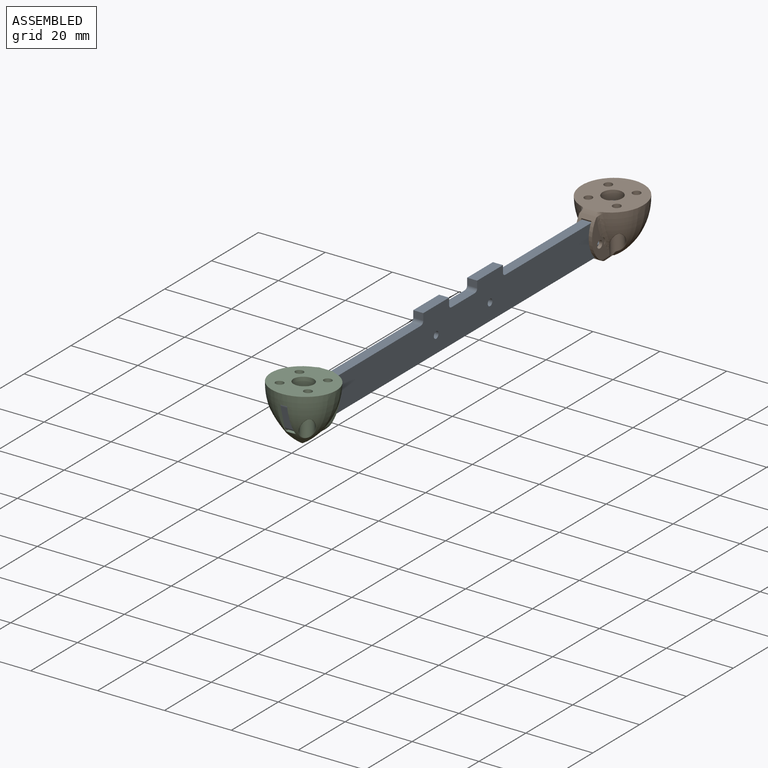
[diagram: assembled view]
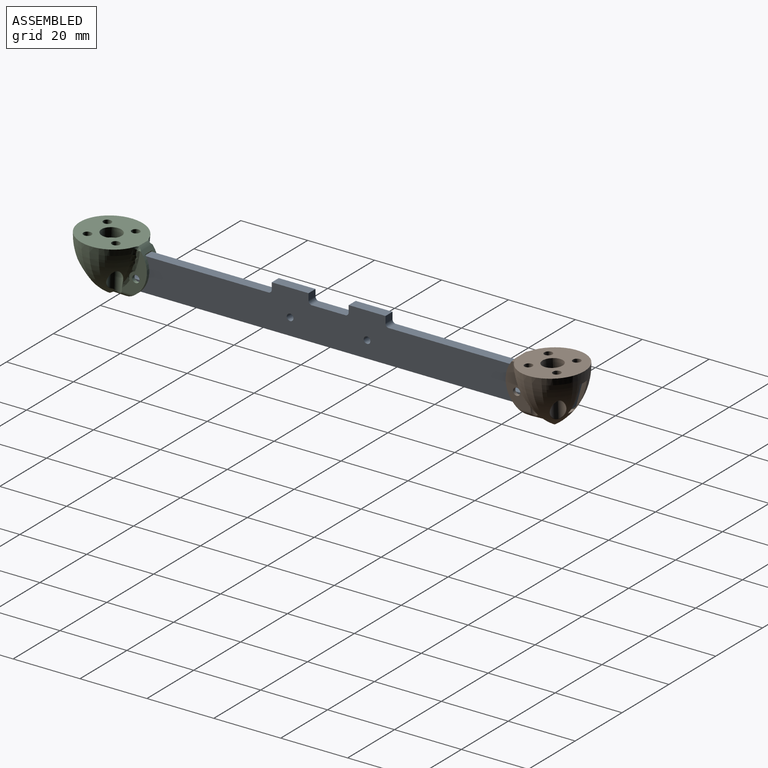
[diagram: assembled view, second angle]
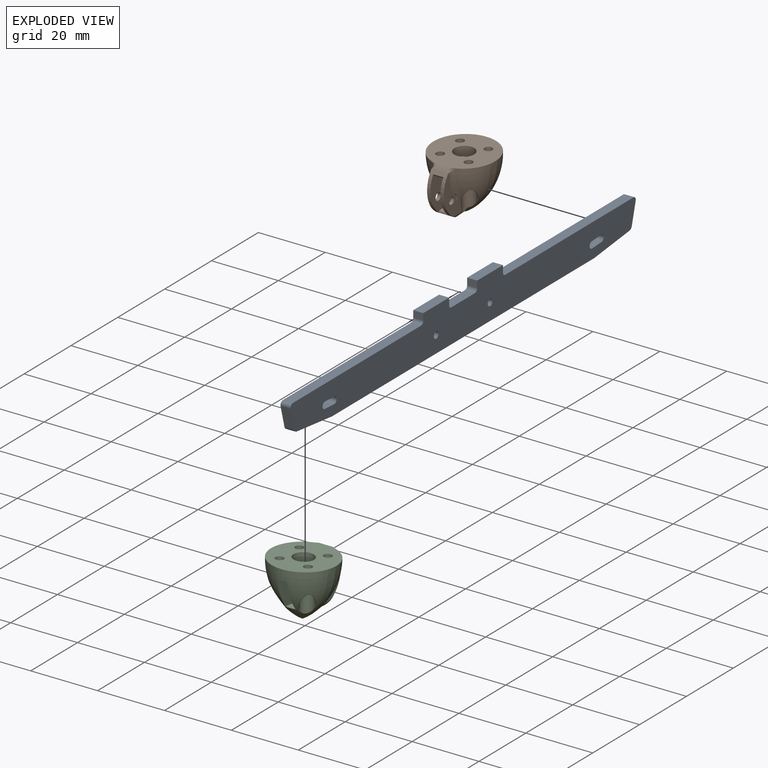
[diagram: exploded view]
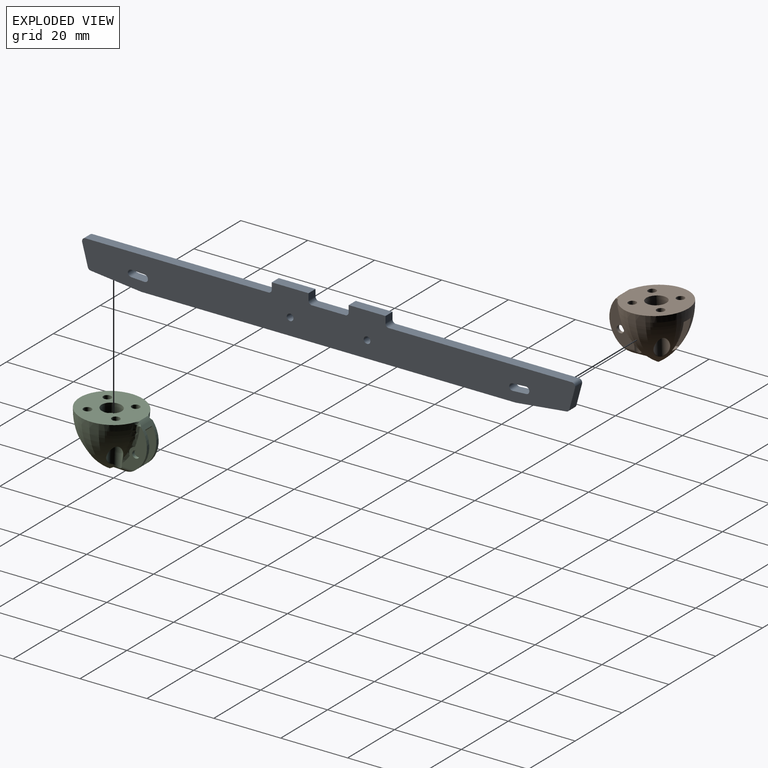
[diagram: exploded view, second angle]
ASSEMBLY  parts=3 mates=6
PART A: 34 faces, bbox 147.4x3x13 mm
  f0: plane 54.7x3mm, normal (0,0,1), area 164.1mm2, adj f4,f5,f21,f29
  f1: plane 54.7x3mm, normal (0,0,1), area 164.1mm2, adj f4,f5,f13,f30
  f2: plane 10x3mm, normal (0,0,1), area 30mm2, adj f4,f5,f28,f31
  f3: plane 6.33x3mm, normal (-0.97,0,-0.26), area 19.7mm2, adj f4,f5,f12,f13
  f4: plane 147.39x13mm, normal (0,-1,0), area 1463.7mm2, adj f0,f1,f2,f3,f6,f7,f8,f9
  f5: plane 147.39x13mm, normal (0,1,0), area 1463.7mm2, adj f0,f1,f2,f3,f6,f7,f8,f9
  f6: plane 15.11x3mm, normal (-0.11,0,-0.99), area 45.6mm2, adj f4,f5,f7,f12
  f7: plane 112x3mm, normal (0,0,-1), area 336mm2, adj f4,f5,f6,f15
  f8: plane 3.99x3mm, normal (0.06,0,1), area 12mm2, adj f4,f5,f9,f11
  f9: cylinder r=1mm len=3mm, axis (0,-1,0), area 9.4mm2, adj f4,f5,f8,f10
  f10: plane 3.99x3mm, normal (-0.06,0,-1), area 12mm2, adj f4,f5,f9,f11
  f11: cylinder r=1mm len=3mm, axis (0,-1,0), area 9.4mm2, adj f4,f5,f8,f10
  f12: cylinder r=1mm len=3mm, axis (0,-1,0), area 3.6mm2, adj f3,f4,f5,f6
  f13: cylinder r=1mm len=3mm, axis (0,1,0), area 5.5mm2, adj f1,f3,f4,f5
  f14: plane 6.33x3mm, normal (0.97,0,-0.26), area 19.7mm2, adj f4,f5,f20,f21
  f15: plane 15.11x3mm, normal (0.11,0,-0.99), area 45.6mm2, adj f4,f5,f7,f20
  f16: plane 3.99x3mm, normal (-0.06,0,1), area 12mm2, adj f4,f5,f17,f19
  f17: cylinder r=1mm len=3mm, axis (0,-1,0), area 9.4mm2, adj f4,f5,f16,f18
  f18: plane 3.99x3mm, normal (0.06,0,-1), area 12mm2, adj f4,f5,f17,f19
  f19: cylinder r=1mm len=3mm, axis (0,-1,0), area 9.4mm2, adj f4,f5,f16,f18
  f20: cylinder r=1mm len=3mm, axis (0,-1,0), area 3.6mm2, adj f4,f5,f14,f15
  f21: cylinder r=1mm len=3mm, axis (0,1,0), area 5.5mm2, adj f0,f4,f5,f14
  f22: plane 3x2mm, normal (-1,0,0), area 6mm2, adj f4,f5,f24,f30
  f23: plane 3x2mm, normal (1,0,0), area 6mm2, adj f4,f5,f24,f31
  f24: plane 11x3mm, normal (0,0,1), area 33mm2, adj f4,f5,f22,f23
  f25: plane 3x2mm, normal (1,0,0), area 6mm2, adj f4,f5,f27,f29
  f26: plane 3x2mm, normal (-1,0,0), area 6mm2, adj f4,f5,f27,f28
  f27: plane 11x3mm, normal (0,0,1), area 33mm2, adj f4,f5,f25,f26
  f28: cylinder r=1mm len=3mm, axis (0,-1,0), area 4.7mm2, adj f2,f4,f5,f26
  f29: cylinder r=1mm len=3mm, axis (0,1,0), area 4.7mm2, adj f0,f4,f5,f25
  f30: cylinder r=1mm len=3mm, axis (0,-1,0), area 4.7mm2, adj f1,f4,f5,f22
  f31: cylinder r=1mm len=3mm, axis (0,1,0), area 4.7mm2, adj f2,f4,f5,f23
  f32: cylinder r=1mm len=3mm, axis (0,-1,0), area 18.8mm2, adj f4,f5
  f33: cylinder r=1mm len=3mm, axis (0,-1,0), area 18.8mm2, adj f4,f5
PART B: 63 faces, bbox 19x22.1x17.8 mm
  f0: revolved ~19x19mm, area 520.2mm2, adj f1,f38,f39,f40,f41,f45,f49,f50
  f1: plane 21.66x11.28mm, normal (1,0,0), area 183.4mm2, adj f0,f2,f31,f32,f33,f34,f35,f36
  f2: cylinder r=1.1mm len=2.2mm, axis (1,0,0), area 6.9mm2, adj f1,f3
  f3: plane 12.41x7.27mm, normal (-1,0,0), area 38.7mm2, adj f2,f4,f5,f6,f13,f33,f60,f61
  f4: plane 0.1x0.08mm, normal (-0.71,0,0.71), area 0mm2, adj f3,f33,f61
  f5: cylinder r=2mm len=2.85mm, axis (1,0,0), area 0mm2, adj f3,f60
  f6: cylinder r=0.2mm len=0.73mm, axis (0,0,1), area 0.1mm2, adj f3,f7,f11,f12
  f7: cylinder r=2mm len=10.97mm, axis (0,0,1), area 89.1mm2, adj f6,f8,f10,f11,f12,f59
  f8: plane 4x4mm, normal (0,0,-1), area 8mm2, adj f7,f9
  f9: cylinder r=1.2mm len=3.2mm, axis (0,0,1), area 24.1mm2, adj f8,f62
  f10: bspline ~1.18x0.97mm, area 0.2mm2, adj f7,f11,f58,f59
  f11: bspline ~1.99x0.94mm, area 0.3mm2, adj f6,f7,f10,f13
  f12: bspline ~4.25x1.38mm, area 1mm2, adj f6,f7,f59,f60
  f13: cylinder r=1.5mm len=6.69mm, axis (0,-1,0), area 4.4mm2, adj f3,f11,f14,f33,f58
  f14: plane 4.81x0.13mm, normal (-0.71,0,-0.71), area 0.8mm2, adj f13,f15,f33,f57
  f15: cylinder r=1.5mm len=4.46mm, axis (0,1,0), area 3.5mm2, adj f14,f16,f33,f56
  f16: plane 1.76x1.54mm, normal (0,0,-1), area 2.5mm2, adj f15,f17,f33,f55
  f17: cylinder r=1.5mm len=4.46mm, axis (0,-1,0), area 3.5mm2, adj f16,f18,f33,f54
  f18: plane 4.81x0.13mm, normal (0.71,0,-0.71), area 0.8mm2, adj f17,f19,f33,f53
  f19: cylinder r=1.5mm len=6.69mm, axis (0,1,0), area 4.4mm2, adj f18,f20,f27,f33,f52
  f20: bspline ~1.99x0.93mm, area 0.3mm2, adj f19,f21,f25,f26
  f21: cylinder r=2mm len=10.97mm, axis (0,0,1), area 89.3mm2, adj f20,f22,f23,f25,f26,f51
  f22: bspline ~4.24x1.38mm, area 1mm2, adj f21,f25,f50,f51
  f23: plane 4x4mm, normal (0,0,-1), area 8mm2, adj f21,f24
  f24: cylinder r=1.2mm len=3.2mm, axis (0,0,1), area 24.1mm2, adj f23,f62
  f25: cylinder r=0.2mm len=0.73mm, axis (0,0,1), area 0.1mm2, adj f20,f21,f22,f27
  f26: bspline ~1.17x0.95mm, area 0.2mm2, adj f20,f21,f51,f52
  f27: plane 12.41x7.27mm, normal (1,0,0), area 38.7mm2, adj f19,f25,f28,f29,f30,f33,f49,f50
  f28: cylinder r=2mm len=2.85mm, axis (-1,0,0), area 0mm2, adj f27,f50
  f29: plane 0.1x0.08mm, normal (0.71,0,0.71), area 0mm2, adj f27,f33,f49
  f30: cylinder r=1.1mm len=2.2mm, axis (1,0,0), area 6.9mm2, adj f27,f39
  f31: plane 8.39x3.03mm, normal (0,0.03,-1), area 24.3mm2, adj f1,f32,f36,f39
  f32: plane 3x0.47mm, normal (0,0.88,-0.47), area 1.6mm2, adj f1,f31,f33,f39
  f33: cylinder r=8.5mm len=15.01mm, axis (1,0,0), area 58.2mm2, adj f1,f3,f4,f13,f14,f15,f16,f17
  f34: plane 3x0.38mm, normal (0,0.96,0.29), area 1.2mm2, adj f1,f33,f38,f39
  f35: plane 5.2x1.5mm, normal (0,0,1), area 5.5mm2, adj f1,f36
  f36: cylinder r=3mm len=6mm, axis (0,0,1), area 52.8mm2, adj f1,f31,f35,f37,f39,f40,f62
  f37: plane 5.2x1.5mm, normal (0,0,1), area 5.5mm2, adj f36,f39
  f38: plane 14.61x3.05mm, normal (0,0.08,1), area 43.6mm2, adj f0,f1,f34,f39
  f39: plane 21.66x11.28mm, normal (-1,0,0), area 183.4mm2, adj f0,f30,f31,f32,f33,f34,f36,f37
  f40: plane 6.68x3.04mm, normal (0,0.03,-1), area 19mm2, adj f0,f1,f36,f39
  f41: bspline ~7.09x4.49mm, area 7.3mm2, adj f0,f42
  f42: cylinder r=2mm len=10.09mm, axis (0,0,1), area 82.8mm2, adj f41,f43
  f43: plane 4x4mm, normal (0,0,-1), area 8mm2, adj f42,f44
  f44: cylinder r=1.2mm len=3.2mm, axis (0,0,1), area 24.1mm2, adj f43,f62
  f45: bspline ~7.09x4.49mm, area 7.3mm2, adj f0,f46
  f46: cylinder r=2mm len=10.09mm, axis (0,0,1), area 84.5mm2, adj f45,f47
  f47: plane 4x4mm, normal (0,0,-1), area 8mm2, adj f46,f48
  f48: cylinder r=1.2mm len=3.2mm, axis (0,0,1), area 24.1mm2, adj f47,f62
  f49: bspline ~3.24x2.76mm, area 1.4mm2, adj f0,f27,f29,f33,f50,f62
  f50: bspline ~15.02x6.89mm, area 19.2mm2, adj f0,f22,f27,f28,f49
  f51: bspline ~7.1x4.49mm, area 5.4mm2, adj f0,f21,f22,f26
  f52: bspline ~2.01x1.49mm, area 1.1mm2, adj f0,f19,f26,f53
  f53: bspline ~0.9x0.8mm, area 0.1mm2, adj f0,f18,f52,f54
  f54: bspline ~2.15x1.21mm, area 1.2mm2, adj f0,f17,f53,f55
  f55: torus R=2.65mm, axis (0,0,1), area 1.4mm2, adj f0,f16,f54,f56
  f56: bspline ~1.93x1.12mm, area 1.2mm2, adj f0,f15,f55,f57
  f57: bspline ~0.92x0.84mm, area 0.1mm2, adj f0,f14,f56,f58
  f58: bspline ~2.11x1.53mm, area 1.1mm2, adj f0,f10,f13,f57
  f59: bspline ~7.1x4.49mm, area 5.4mm2, adj f0,f7,f10,f12
  f60: bspline ~14.21x7.09mm, area 19.2mm2, adj f0,f3,f5,f12,f61
  f61: bspline ~3.24x2.76mm, area 1.4mm2, adj f0,f3,f4,f33,f60,f62
  f62: plane 19.03x19.03mm, normal (0,0,1), area 237.7mm2, adj f0,f9,f24,f33,f36,f44,f48,f49
PART C: same geometry as B
PLACE A rot(axis=(0,0,1),90deg) t=(0,-19.65,2)mm
PLACE B rot(axis=(0,0.02,-1),180deg) t=(0,111.25,2.8)mm
PLACE C rot(axis=(-1,0,0),2deg) t=(0,-20.56,2.8)mm
MATE planar A.f20 <-> B.f1  axis (1,0,0) through (1.5,116.35,-7.33)mm
MATE planar A.f1 <-> C.f40  axis (0,0,1) through (0,0,0)mm
MATE planar A.f1 <-> B.f40  axis (0,0,1) through (0,0,0)mm
MATE parallel C.f38 <-> A.f6  axis (0,0.11,0.99) through (0,-19.1,-9.56)mm
MATE planar A.f5 <-> C.f1  axis (-1,0,0) through (-1.5,-9.6,-5.06)mm
MATE parallel B.f38 <-> A.f15  axis (0,-0.11,0.99) through (0,109.8,-9.56)mm
